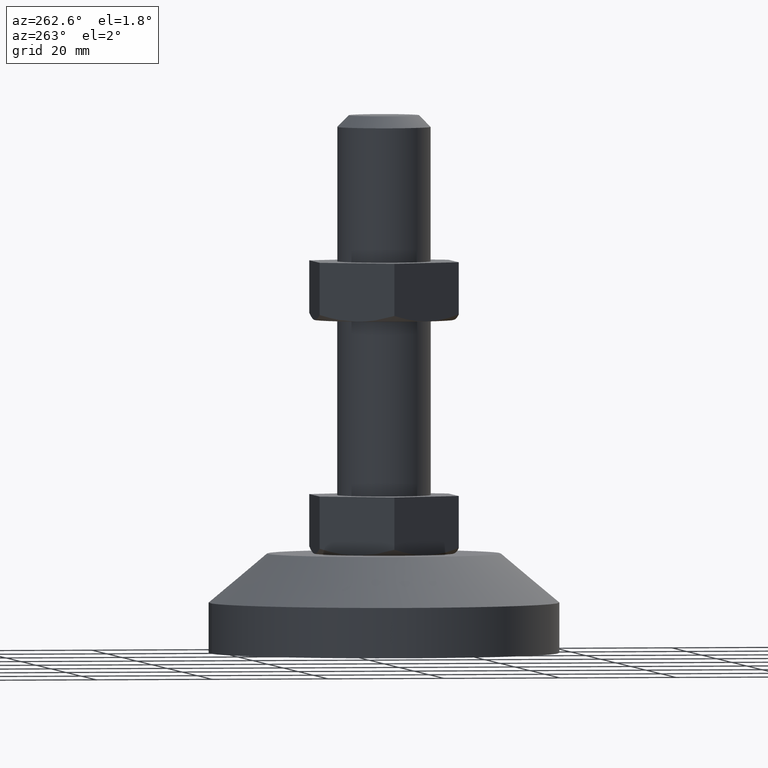
[diagram: clean part render]
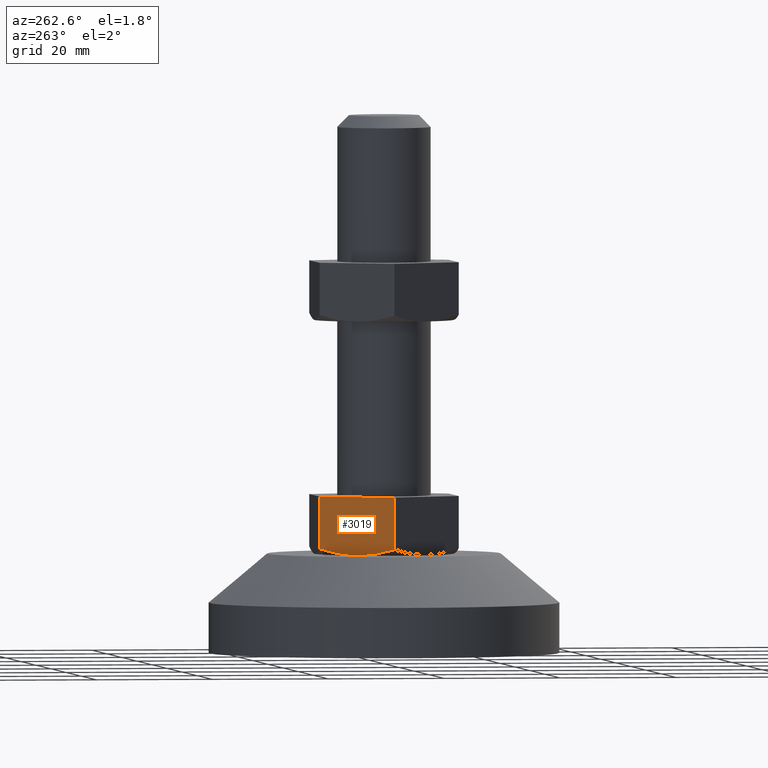
[diagram: same view with one face highlighted and labeled with its STEP entity id]
A machine part, auxiliary view. The second image highlights one B-rep face of the part: STEP entity #3019.
In plain terms, the highlighted face is a freeform B-spline surface patch.
Its self-contained STEP definition (entity closure, byte-faithful):
#2764=CARTESIAN_POINT('',(-6.921797000000001,12.0,27.0));
#2765=VERTEX_POINT('',#2764);
#2771=CARTESIAN_POINT('',(-13.850000000000000,0.0,27.0));
#2772=VERTEX_POINT('',#2771);
#2773=CARTESIAN_POINT('',(-6.921797000000001,12.0,27.0));
#2774=CARTESIAN_POINT('',(-13.850000000000000,0.0,27.0));
#2775=QUASI_UNIFORM_CURVE('',1,(#2773,#2774),.UNSPECIFIED.,.F.,.U.);
#2776=EDGE_CURVE('',#2765,#2772,#2775,.T.);
#2944=CARTESIAN_POINT('',(-13.850000000000000,-1.257913E-015,18.071796703249550));
#2945=VERTEX_POINT('',#2944);
#2967=CARTESIAN_POINT('',(-13.850000000000000,0.0,27.0));
#2968=CARTESIAN_POINT('',(-13.850000000000000,-1.257913E-015,18.071796703249550));
#2969=QUASI_UNIFORM_CURVE('',1,(#2967,#2968),.UNSPECIFIED.,.F.,.U.);
#2970=EDGE_CURVE('',#2772,#2945,#2969,.T.);
#2975=CARTESIAN_POINT('',(-14.196063726421800,-0.599399976741672,16.501020711336189));
#2976=CARTESIAN_POINT('',(-6.575733087749316,12.599400298606749,16.501020711336189));
#2977=CARTESIAN_POINT('',(-14.196063726421800,-0.599399976741672,27.499475477586881));
#2978=CARTESIAN_POINT('',(-6.575733087749316,12.599400298606749,27.499475477586881));
#2979=B_SPLINE_SURFACE_WITH_KNOTS('',1,1,((#2975,#2977),(#2976,#2978)),.UNSPECIFIED.,.F.,.F.,.U.,(2,2),(2,2),(0.0,15.240661657265020),(0.0,10.998454766250690),.UNSPECIFIED.);
#2980=CARTESIAN_POINT('',(-10.646941116999550,5.547867249536807,17.006981388879669));
#2981=VERTEX_POINT('',#2980);
#2982=CARTESIAN_POINT('',(-6.921797000000001,12.0,18.073646796981102));
#2983=VERTEX_POINT('',#2982);
#2984=CARTESIAN_POINT('',(-10.646941116999550,5.547867249536807,17.006981388879669));
#2985=CARTESIAN_POINT('',(-10.562251426803339,5.694553959969105,17.002749320347831));
#2986=CARTESIAN_POINT('',(-10.477414073128029,5.841496430566403,17.000573178553999));
#2987=CARTESIAN_POINT('',(-10.245164426292661,6.243764244975556,17.000353354127171));
#2988=CARTESIAN_POINT('',(-10.097158140226909,6.500118413219665,17.006525190391219));
#2989=CARTESIAN_POINT('',(-9.802501012175538,7.010479052393842,17.031290246755169));
#2990=CARTESIAN_POINT('',(-9.655684875938567,7.264771821102666,17.049855351528759));
#2991=CARTESIAN_POINT('',(-9.216707068974763,8.025102970535093,17.123293864281798));
#2992=CARTESIAN_POINT('',(-8.926019431075837,8.528588251758968,17.195951867589422));
#2993=CARTESIAN_POINT('',(-8.059135804804473,10.030073307342031,17.476415348034880));
#2994=CARTESIAN_POINT('',(-7.488098767723450,11.019137516826500,17.746464934868541));
#2995=CARTESIAN_POINT('',(-6.921797000000001,12.0,18.073646796981102));
#2996=B_SPLINE_CURVE_WITH_KNOTS('',3,(#2984,#2985,#2986,#2987,#2988,#2989,#2990,#2991,#2992,#2993,#2994,#2995),.UNSPECIFIED.,.F.,.U.,(4,2,2,2,2,4),(0.463929932335301,0.499999999999999,0.562499999999999,0.624999999999999,0.749999999999999,1.0),.UNSPECIFIED.);
#2997=EDGE_CURVE('',#2981,#2983,#2996,.T.);
#2998=ORIENTED_EDGE('',*,*,#2997,.F.);
#2999=CARTESIAN_POINT('',(-13.850000000000000,-1.257913E-015,18.071796703249550));
#3000=CARTESIAN_POINT('',(-13.284368882389220,0.979703008395874,17.745228142902310));
#3001=CARTESIAN_POINT('',(-12.714611927454079,1.966552175650107,17.476103908818430));
#3002=CARTESIAN_POINT('',(-11.851059074089219,3.462271350524784,17.196575443451191));
#3003=CARTESIAN_POINT('',(-11.561718321290510,3.963424820649130,17.124141902949351));
#3004=CARTESIAN_POINT('',(-11.063643881830600,4.826116057217105,17.040347937378609));
#3005=CARTESIAN_POINT('',(-10.855741290816090,5.186214323978398,17.017416108560180));
#3006=CARTESIAN_POINT('',(-10.646941116999550,5.547867249536807,17.006981388879669));
#3007=B_SPLINE_CURVE_WITH_KNOTS('',3,(#2999,#3000,#3001,#3002,#3003,#3004,#3005,#3006),.UNSPECIFIED.,.F.,.U.,(4,2,2,4),(0.0,0.250000000000000,0.374999999999999,0.463929932335301),.UNSPECIFIED.);
#3008=EDGE_CURVE('',#2945,#2981,#3007,.T.);
#3009=ORIENTED_EDGE('',*,*,#3008,.F.);
#3010=ORIENTED_EDGE('',*,*,#2970,.F.);
#3011=ORIENTED_EDGE('',*,*,#2776,.F.);
#3012=CARTESIAN_POINT('',(-6.921797000000001,12.0,27.0));
#3013=CARTESIAN_POINT('',(-6.921797000000001,12.0,18.073646796981102));
#3014=QUASI_UNIFORM_CURVE('',1,(#3012,#3013),.UNSPECIFIED.,.F.,.U.);
#3015=EDGE_CURVE('',#2765,#2983,#3014,.T.);
#3016=ORIENTED_EDGE('',*,*,#3015,.T.);
#3017=EDGE_LOOP('',(#2998,#3009,#3010,#3011,#3016));
#3018=FACE_OUTER_BOUND('',#3017,.T.);
#3019=ADVANCED_FACE('',(#3018),#2979,.F.);